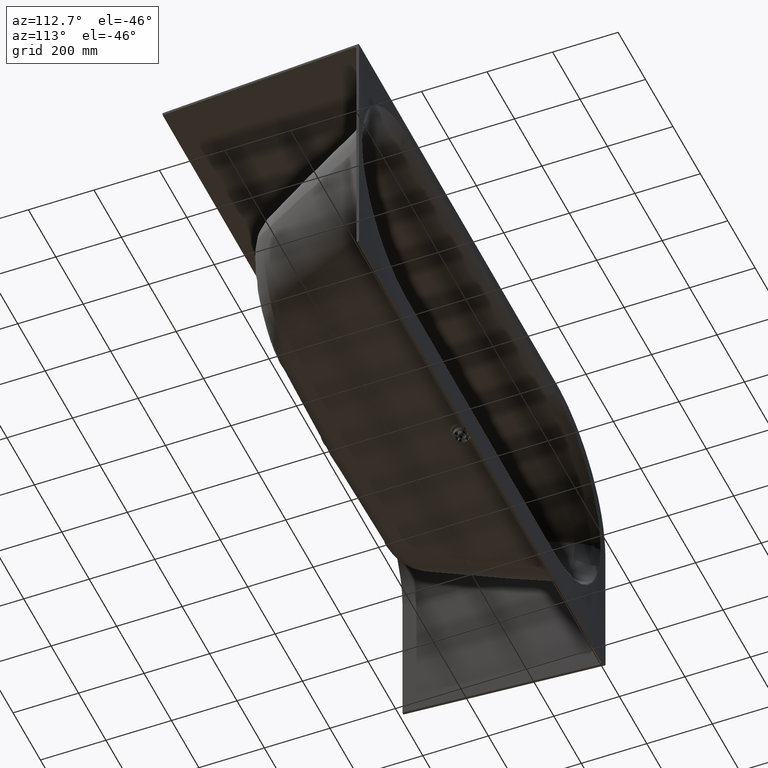
[diagram: clean part render]
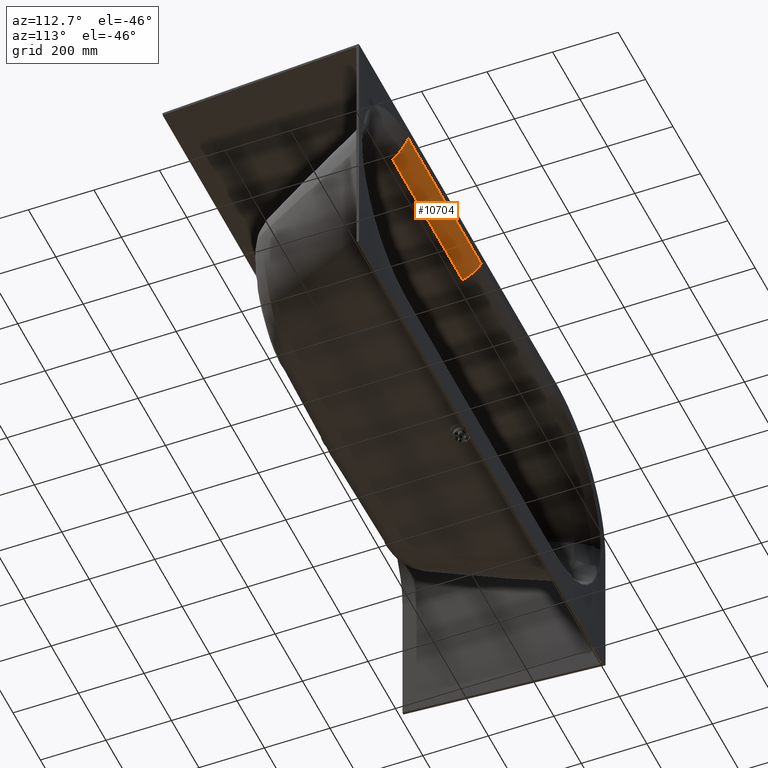
[diagram: same view with one face highlighted and labeled with its STEP entity id]
A machine part, auxiliary view. The second image highlights one B-rep face of the part: STEP entity #10704.
In plain terms, the highlighted face is a freeform B-spline surface patch.
Its self-contained STEP definition (entity closure, byte-faithful):
#2370=CARTESIAN_POINT('',(5.311514323214E2,-3.637201557665E0,3.689815781139E2));
#2372=CARTESIAN_POINT('',(5.110218891271E2,-6.054304443643E1,3.277809061408E2));
#2373=CARTESIAN_POINT('',(5.151350113818E2,-4.891554148939E1,3.307245027837E2));
#2374=CARTESIAN_POINT('',(5.229598207160E2,-2.679488645239E1,3.410677388027E2));
#2375=CARTESIAN_POINT('',(5.288785486897E2,-1.006314337552E1,3.588542636931E2));
#2376=CARTESIAN_POINT('',(5.311514323214E2,-3.637201557665E0,3.689815781139E2));
#2398=CARTESIAN_POINT('',(5.311514323214E2,-3.637201557665E0,3.689815781139E2));
#2399=CARTESIAN_POINT('',(3.540983430482E2,-3.584464618917E0,3.689481156781E2));
#2400=CARTESIAN_POINT('',(1.770531005108E2,-3.636942488028E0,3.689819250307E2));
#2401=CARTESIAN_POINT('',(1.391304082727E-14,-3.636942488028E0,
3.689819250307E2));
#2403=CARTESIAN_POINT('',(0.E0,-6.054399916378E1,3.277806644833E2));
#2404=CARTESIAN_POINT('',(1.703404609740E2,-6.054399916378E1,3.277806644833E2));
#2405=CARTESIAN_POINT('',(3.406814281532E2,-6.054305858824E1,3.277809620081E2));
#2406=CARTESIAN_POINT('',(5.110218891271E2,-6.054304443643E1,3.277809061408E2));
#2418=CARTESIAN_POINT('',(1.391304082727E-14,-3.636942488028E0,
3.689819250307E2));
#2419=CARTESIAN_POINT('',(1.391304082727E-14,-1.006259441233E1,
3.588542400608E2));
#2420=CARTESIAN_POINT('',(0.E0,-2.679451198062E1,3.410665246681E2));
#2421=CARTESIAN_POINT('',(0.E0,-4.891652767545E1,3.307236116116E2));
#2422=CARTESIAN_POINT('',(0.E0,-6.054399916378E1,3.277806644833E2));
#3748=VERTEX_POINT('',#2370);
#3750=VERTEX_POINT('',#2372);
#3787=CARTESIAN_POINT('',(0.E0,-6.054399916378E1,3.277806644833E2));
#3789=VERTEX_POINT('',#3787);
#3868=VERTEX_POINT('',#2401);
#10671=CARTESIAN_POINT('',(5.367397829532E2,-2.861516405700E0,
3.702243517818E2));
#10672=CARTESIAN_POINT('',(3.560551002101E2,-2.874395369580E0,
3.702322132849E2));
#10673=CARTESIAN_POINT('',(1.753704188963E2,-2.860752091530E0,
3.702258849774E2));
#10674=CARTESIAN_POINT('',(-5.314264438446E0,-2.861020993393E0,
3.702260095199E2));
#10675=CARTESIAN_POINT('',(5.339462554830E2,-1.070136186029E1,
3.574834598648E2));
#10676=CARTESIAN_POINT('',(3.542019514608E2,-9.988634282830E0,
3.570489465729E2));
#10677=CARTESIAN_POINT('',(1.744576338752E2,-1.069395718584E1,
3.574791762359E2));
#10678=CARTESIAN_POINT('',(-5.286604261887E0,-1.068006024031E1,
3.574706994173E2));
#10679=CARTESIAN_POINT('',(5.302556995890E2,-2.105006343201E1,
3.462920176791E2));
#10680=CARTESIAN_POINT('',(3.517583457626E2,-1.966332841663E1,
3.450546430923E2));
#10681=CARTESIAN_POINT('',(1.732517902652E2,-2.103710818194E1,
3.462786513211E2));
#10682=CARTESIAN_POINT('',(-5.250064841768E0,-2.101004051701E1,
3.462545347925E2));
#10683=CARTESIAN_POINT('',(5.258106902615E2,-3.348706359194E1,
3.373037790573E2));
#10684=CARTESIAN_POINT('',(3.488292369755E2,-3.222683994635E1,
3.350898686829E2));
#10685=CARTESIAN_POINT('',(1.717990062845E2,-3.347365731861E1,
3.372821748844E2));
#10686=CARTESIAN_POINT('',(-5.206047032757E0,-3.344909136290E1,
3.372389798353E2));
#10687=CARTESIAN_POINT('',(5.208550955012E2,-4.733431703109E1,
3.309646563506E2));
#10688=CARTESIAN_POINT('',(3.455161249026E2,-4.694818456667E1,
3.292246748659E2));
#10689=CARTESIAN_POINT('',(1.701802092890E2,-4.733108927914E1,
3.309471720557E2));
#10690=CARTESIAN_POINT('',(-5.156984708586E0,-4.732354484711E1,
3.309132337121E2));
#10691=CARTESIAN_POINT('',(5.156552910256E2,-6.187579844368E1,
3.274485604459E2));
#10692=CARTESIAN_POINT('',(3.420686888395E2,-6.191640587661E1,
3.276192769439E2));
#10693=CARTESIAN_POINT('',(1.684811858016E2,-6.187828529184E1,
3.274497326999E2));
#10694=CARTESIAN_POINT('',(-5.105499674866E0,-6.187903617546E1,
3.274530732821E2));
#10695=B_SPLINE_SURFACE_WITH_KNOTS('',5,3,((#10671,#10672,#10673,#10674),
(#10675,#10676,#10677,#10678),(#10679,#10680,#10681,#10682),(#10683,#10684,
#10685,#10686),(#10687,#10688,#10689,#10690),(#10691,#10692,#10693,#10694)),
.UNSPECIFIED.,.F.,.F.,.F.,(6,6),(4,4),(-3.626319105312E-3,1.018788249898E0),(
-9.999559433521E-3,1.010000012830E0),.UNSPECIFIED.);
#10696=ORIENTED_EDGE('',*,*,#10658,.T.);
#10697=ORIENTED_EDGE('',*,*,#5735,.T.);
#10699=ORIENTED_EDGE('',*,*,#10698,.T.);
#10701=ORIENTED_EDGE('',*,*,#10700,.T.);
#10702=EDGE_LOOP('',(#10696,#10697,#10699,#10701));
#10703=FACE_OUTER_BOUND('',#10702,.F.);
#10704=ADVANCED_FACE('',(#10703),#10695,.T.);
#2377=B_SPLINE_CURVE_WITH_KNOTS('',3,(#2372,#2373,#2374,#2375,#2376),
.UNSPECIFIED.,.F.,.F.,(4,1,4),(0.E0,5.E-1,1.E0),.UNSPECIFIED.);
#2402=B_SPLINE_CURVE_WITH_KNOTS('',3,(#2398,#2399,#2400,#2401),.UNSPECIFIED.,
.F.,.F.,(4,4),(0.E0,1.E0),.UNSPECIFIED.);
#2407=B_SPLINE_CURVE_WITH_KNOTS('',3,(#2403,#2404,#2405,#2406),.UNSPECIFIED.,
.F.,.F.,(4,4),(0.E0,1.E0),.UNSPECIFIED.);
#2423=B_SPLINE_CURVE_WITH_KNOTS('',3,(#2418,#2419,#2420,#2421,#2422),
.UNSPECIFIED.,.F.,.F.,(4,1,4),(0.E0,5.E-1,1.E0),.UNSPECIFIED.);
#5735=EDGE_CURVE('',#3748,#3868,#2402,.T.);
#10658=EDGE_CURVE('',#3750,#3748,#2377,.T.);
#10698=EDGE_CURVE('',#3868,#3789,#2423,.T.);
#10700=EDGE_CURVE('',#3789,#3750,#2407,.T.);